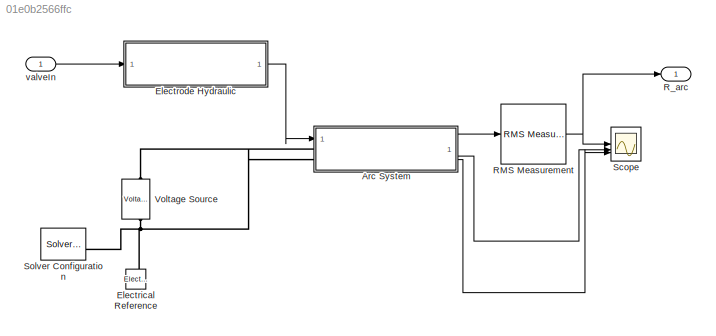
MODEL slx_01e0b2566ffc
KIND model
CONFIG AbsTol = auto
CONFIG EnableMultiTasking = off
CONFIG FixedStep = auto
CONFIG MaxStep = auto
CONFIG MinStep = auto
CONFIG RelTol = 1e-3
CONFIG SampleTimeConstraint = Unconstrained
CONFIG SolverName = FixedStepAuto
CONFIG StartTime = 0.0
CONFIG StopTime = 1
WORKSPACE source: mxarray member
WORKSPACE GateChoice: string (value not decoded)
BLOCK [SubSystem] Arc System
  ReferencedSubsystem = Arc_System
BLOCK [Reference] Electrical Reference  REF=fl_lib/Electrical/Electrical Elements/Electrical Reference
  NameLocation = right
  SourceBlock = fl_lib/Electrical/Electrical Elements/Electrical Reference
  SourceType = Electrical Reference
BLOCK [SubSystem] Electrode Hydraulic
  ReferencedSubsystem = Electrode_Hydraulic
BLOCK [Reference] RMS Measurement  REF=eeRmsMeasurement/RMS
Measurement
  LibrarySourceBlock = ee_sl_lib/Measurements/RMS\nMeasurement
  SourceBlock = eeRmsMeasurement/RMS\nMeasurement
  SourceType = RMS Measurement
BLOCK [Outport] R_arc
BLOCK [Scope] Scope
  ActiveDisplayYMaximum = 0.045401796249057116
  ActiveDisplayYMinimum = -0.0050446440276730124
  Floating = off
  GraphicalSettings = {"Style":{"BackgroundColor":[0.12941176470588237,0.12941176470588237,0.12941176470588237],"AxesColor":[0.07058823529411765,0.07058823529411765,0.07058823529411765],"LabelsColor":[0.8509803921568627,0.8509803921568627,0.8509803921568627],"PreserveColors":false,"Visible":[true,false,false],"LineStyle":["-","-","-"],"LineWidth":[1.5,1.5,1.5],"BarWidth":[0.9,0.9,0.9],"LineColor":["auto","auto","auto"]...<+2276ch>
  MultipleDisplayCache = [{"MaxYLimMag":0.045401796249057116,"MaxYLimReal":0.045401796249057116,"MinYLimMag":0,"MinYLimReal":-0.0050446440276730124,"PlotAsMagnitudePhase":false,"ShowGrid":true,"ShowLegend":true,"Title":"%<SignalLabel>","YLabel":""}]
  NumInputPorts = 3
  ScopeFrameLocation = window
  ShowLegend = on
  WasSavedAsWebScope = on
  WindowPosition = [319.000000,171.000000,961.000000,697.000000,]
BLOCK [Reference] Solver Configuration  REF=nesl_utility/Solver
Configuration
  SourceBlock = nesl_utility/Solver\nConfiguration
  SourceType = Solver\nConfiguration
BLOCK [Reference] Voltage Source  REF=ee_lib/Sources/Voltage Source
  NameLocation = right
  SourceBlock = ee_lib/Sources/Voltage Source
  SourceType = Voltage Source
BLOCK [Inport] valveIn
LINE Arc System:1 -> RMS Measurement:1
LINE Arc System:2 -> Scope:2
LINE Arc System:3 -> Scope:3
LINE Electrode Hydraulic:1 -> Arc System:1
NET RMS Measurement:1 -> R_arc:1, Scope:1
LINE valveIn:1 -> Electrode Hydraulic:1
PLINE Arc System:LConn1 -- Voltage Source:LConn1
PNET net1: Arc System:LConn2 -- Electrical Reference:LConn1 -- Solver Configuration:RConn1 -- Voltage Source:RConn1
note: NET lines group one-source signal fan-out (src -> all destinations, sorted); 1:1 wires keep LINE; PNET lines group multi-terminal physical nets as a canonical sorted terminal list (undirected conserving connections); 2-terminal nets keep the pairwise PLINE form
